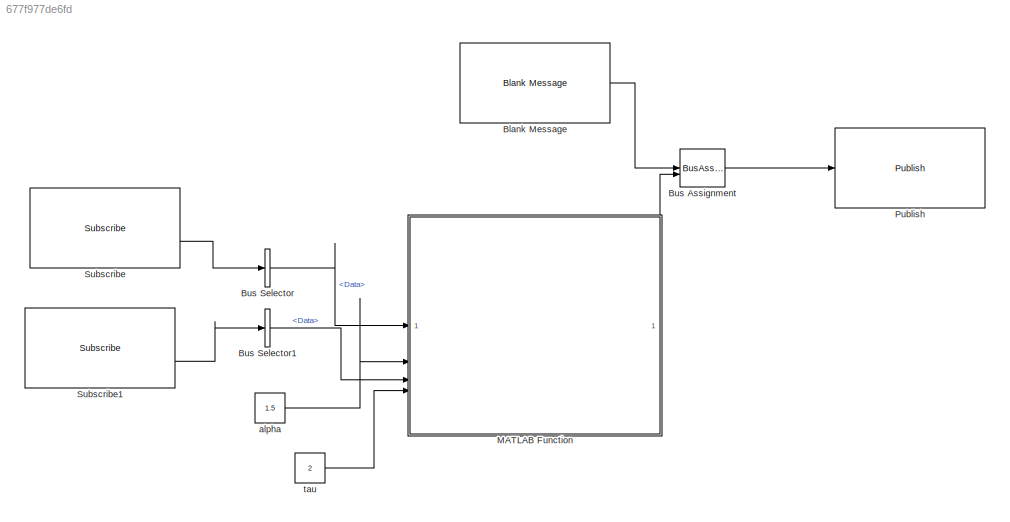
MODEL slx_677f977de6fd
KIND model
CONFIG AbsTol = auto
CONFIG EnableMultiTasking = off
CONFIG FixedStep = auto
CONFIG MaxStep = auto
CONFIG MinStep = auto
CONFIG RelTol = 1e-3
CONFIG SampleTimeConstraint = Unconstrained
CONFIG SolverName = FixedStepAuto
CONFIG StartTime = 0.0
CONFIG StopTime = inf
BLOCK [Reference] Blank Message  REF=robotlib/Blank Message
  SourceBlock = robotlib/Blank Message
  SourceType = ROS Blank Message
BLOCK [BusAssignment] Bus Assignment
  AssignedSignals = Data
BLOCK [BusSelector] Bus Selector
  OutputSignals = Data
BLOCK [BusSelector] Bus Selector1
  OutputSignals = Data
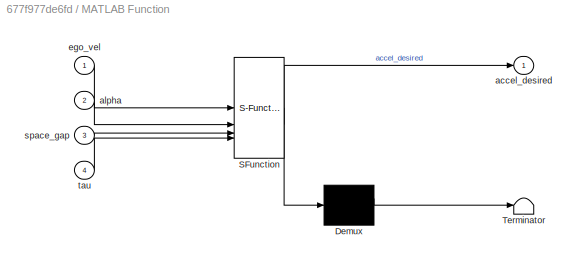
BLOCK [SubSystem] MATLAB Function
  ErrorFcn = Stateflow.Translate.translate
  PermitHierarchicalResolution = ExplicitOnly
  SFBlockType = MATLAB Function
  TreatAsAtomicUnit = on
BLOCK [Demux] MATLAB Function/ Demux 
  Outputs = 1
BLOCK [S-Function] MATLAB Function/ SFunction 
  EnableBusSupport = on
  FunctionName = sf_sfun
  PortCounts = [4 2]
  SFcnIsStateOwnerBlock = off
  SFunctionDeploymentMode = off
  Tag = Stateflow S-Function 2
BLOCK [Terminator] MATLAB Function/ Terminator 
BLOCK [Outport] MATLAB Function/accel_desired
BLOCK [Inport] MATLAB Function/alpha
  Port = 2
BLOCK [Inport] MATLAB Function/ego_vel
BLOCK [Inport] MATLAB Function/space_gap
  Port = 3
BLOCK [Inport] MATLAB Function/tau
  Port = 4
BLOCK [Reference] Publish  REF=robotlib/Publish
  SourceBlock = robotlib/Publish
  SourceType = ROS Publish
BLOCK [Reference] Subscribe  REF=robotlib/Subscribe
  SourceBlock = robotlib/Subscribe
  SourceType = ROS Subscribe
BLOCK [Reference] Subscribe1  REF=robotlib/Subscribe
  SourceBlock = robotlib/Subscribe
  SourceType = ROS Subscribe
BLOCK [Constant] alpha
  Value = 1.5
BLOCK [Constant] tau
  Value = 2
LINE Blank Message:1 -> Bus Assignment:1
LINE Bus Assignment:1 -> Publish:1
LINE Bus Selector1:1 -> MATLAB Function:3
LINE Bus Selector:1 -> MATLAB Function:1
LINE MATLAB Function:1 -> Bus Assignment:2
LINE Subscribe1:2 -> Bus Selector1:1
LINE Subscribe:2 -> Bus Selector:1
LINE alpha:1 -> MATLAB Function:2
LINE tau:1 -> MATLAB Function:4
CHART MATLAB Function states=1 transitions=1
  STATE_LABEL 'eML_blk_kernel()'
  STATE_LABEL 'SCRIPT:\nfunction accel_desired = constant_time_gap(ego_vel, alpha, space_gap, tau)\n\ndesired_gap = ego_vel * tau;\n\naccel_desired = alpha * (space_gap - desired_gap);\n'
CHART  states=0 transitions=0
